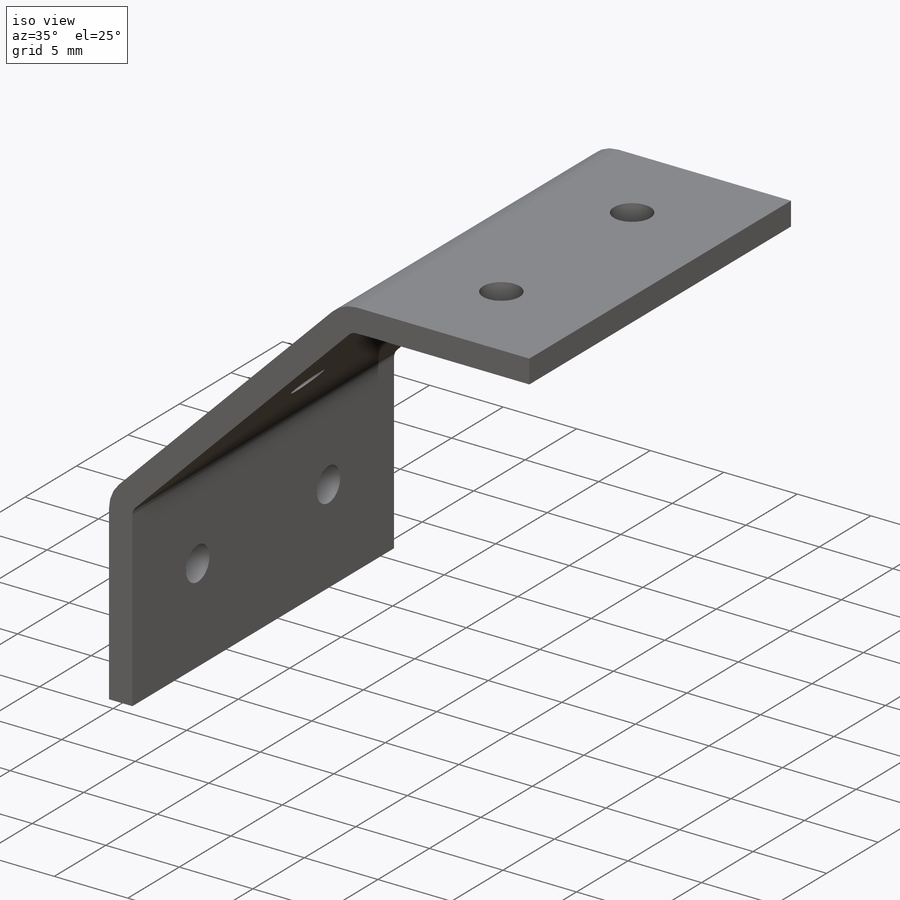
[diagram: iso view]
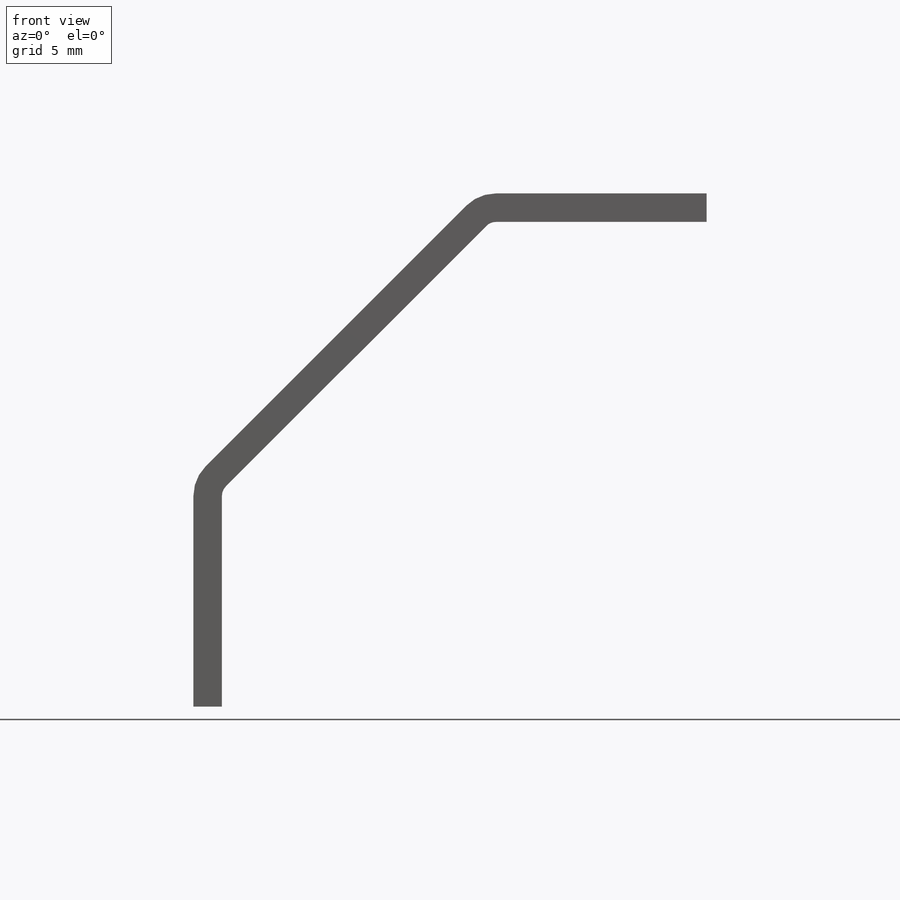
[diagram: front view]
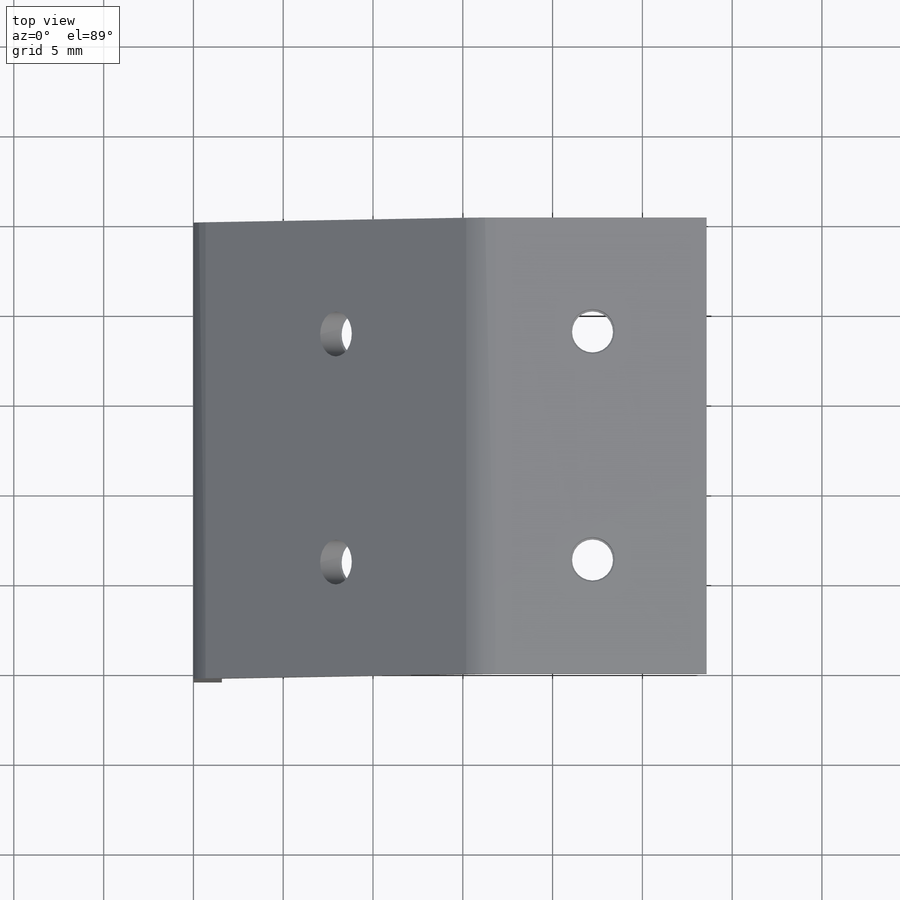
[diagram: top view]
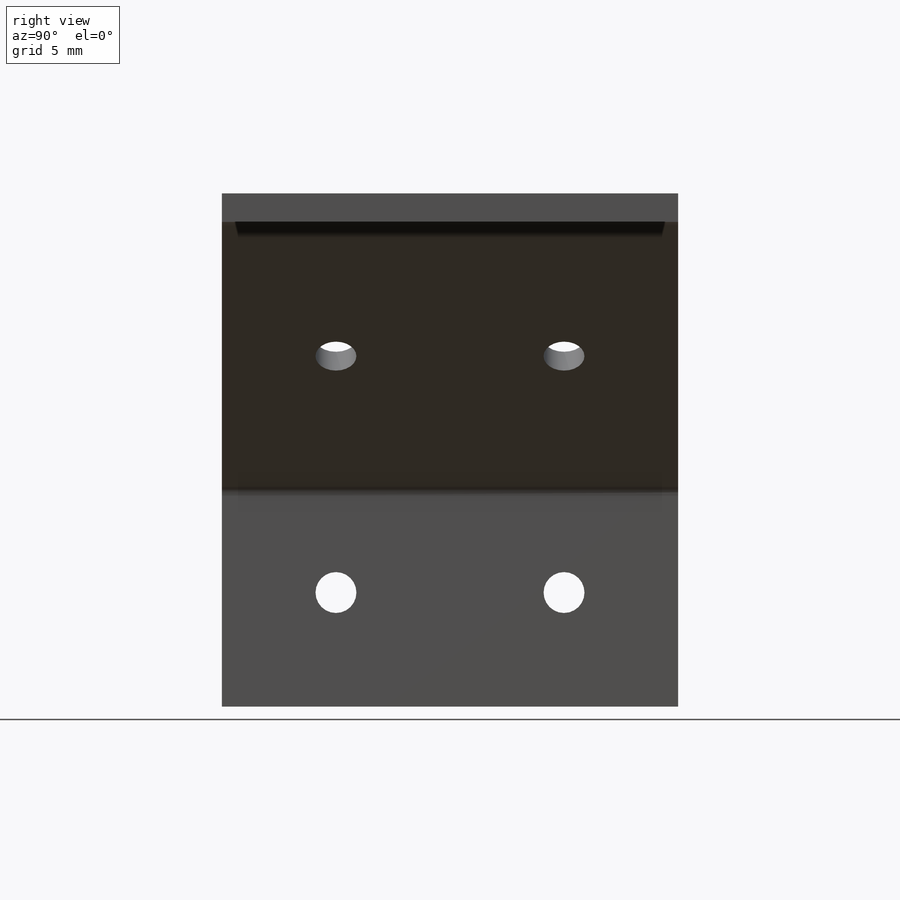
[diagram: right view]
SOLIDWORKS PART (.sldprt)
format: sldprt  version: not decoded by parser v0  size: 505,856 bytes
history: native  units: mm
features: sketch x9, sheet_metal_op x3, hole x3, material x1 + 2 further entries (+16 scaffold rows collapsed; 1 parser-record rows omitted)
feature tree (35):
  scaffold x16  (default folders/planes/origin — collapsed)
  material  "Material <not specified>"
  sketch  "Sketch13"  dims[c1.D1=~44.847319mm c2.D1=~88.389558deg c3.D1=9.525mm c3.D2=~13.470384mm c3.D3=12.7mm c3.D4=~31.430896mm c3.D5=~22.45064mm c3.D6=6.35mm]
  sketch  "Sketch14"
  sheet_metal_op  "Sheet-Metal2"  Thickness=1.5875mm
  sheet_metal_op  "Base-Flange2"
  sheet_metal_op  "BaseBend2"
  hole  "#40 (0.098) Diameter Hole1"  Diameter=2.4892mm Depth=1.524mm
  sketch  "Sketch19"  dims[c1.D1=6.35mm c1.D2=12.7mm c1.D3=6.35mm c1.D4=6.35mm c2.D3=6.35mm]
  sketch  "Sketch18"  dims[hole-wizard template sketch: 46 standard entries collapsed; hole parameters kept: c15.Hole Dia.=2.4892mm c15.Hole Depth=1.524mm c15.D3=~14.816244mm c15.Drill Angle=~2059.488517mm]  [1 undecoded]
  hole  "#40 (0.098) Diameter Hole2"  Diameter=2.4892mm Depth=1.524mm
  sketch  "Sketch21"  dims[D1=6.35mm D2=12.7mm]
  sketch  "Sketch20"  dims[hole-wizard template sketch: 46 standard entries collapsed; hole parameters kept: c15.Hole Dia.=2.4892mm c15.Hole Depth=1.524mm c15.D3=~14.816244mm c15.Drill Angle=~2059.488517mm]  [1 undecoded]
  hole  "#40 (0.098) Diameter Hole3"  Diameter=2.4892mm Depth=1.524mm
  sketch  "Sketch23"  dims[c1.D1=6.35mm c1.D2=12.7mm c1.D3=25.4mm c2.D3=~18.948003mm c3.D3=6.35mm]
  sketch  "Sketch22"  dims[hole-wizard template sketch: 46 standard entries collapsed; hole parameters kept: c15.Hole Dia.=2.4892mm c15.Hole Depth=1.524mm c15.D3=~14.816244mm c15.Drill Angle=~2059.488517mm]  [1 undecoded]
  "Flat-Pattern2"
  sketch  "Bend-Lines2"
  "Flatten-<BaseBend2>1"
  parser-record x1  (decoder bookkeeping rows leaked as tree rows — omitted from the tree; the rows remain in map.json)
decode coverage: 11 of 15 modeling features carry decoded parameters; 2 rows unclassified (native names shown)
note: ~ marks probable driven/reference dimensions
note: suppression state not decoded; provenance and decode notes live in map.json
note: 3 required parameter values undecoded (feature->parameter linkage not recoverable at this tier; creation-order binding heuristic only, values carry confidence <= 0.55)
